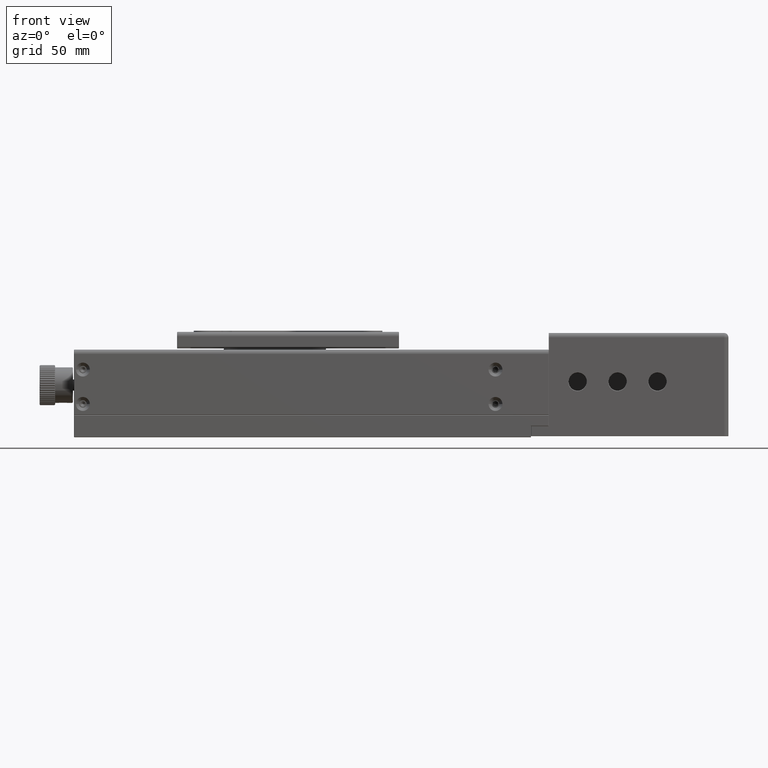
[diagram: clean part render]
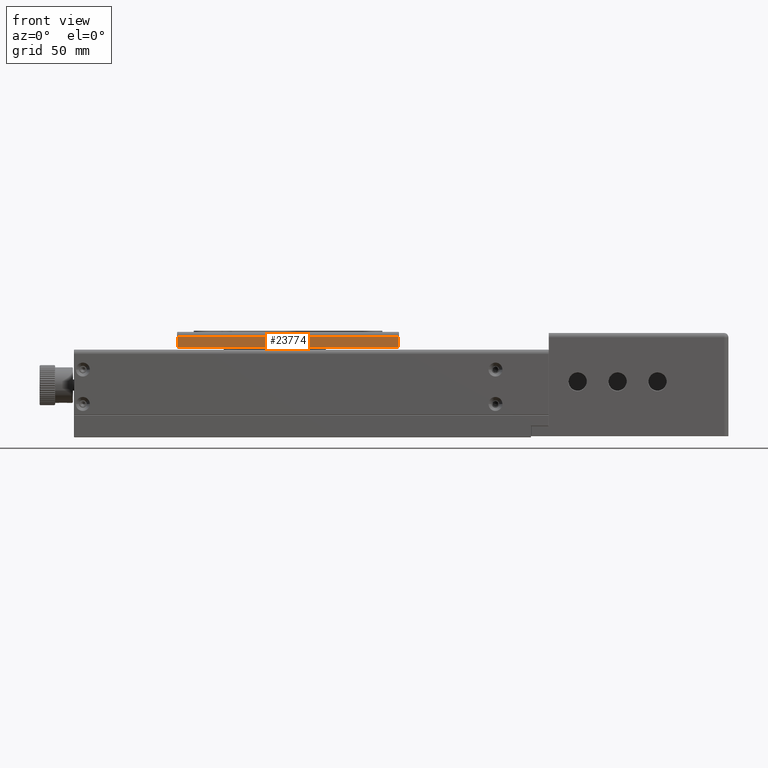
[diagram: same view with one face highlighted and labeled with its STEP entity id]
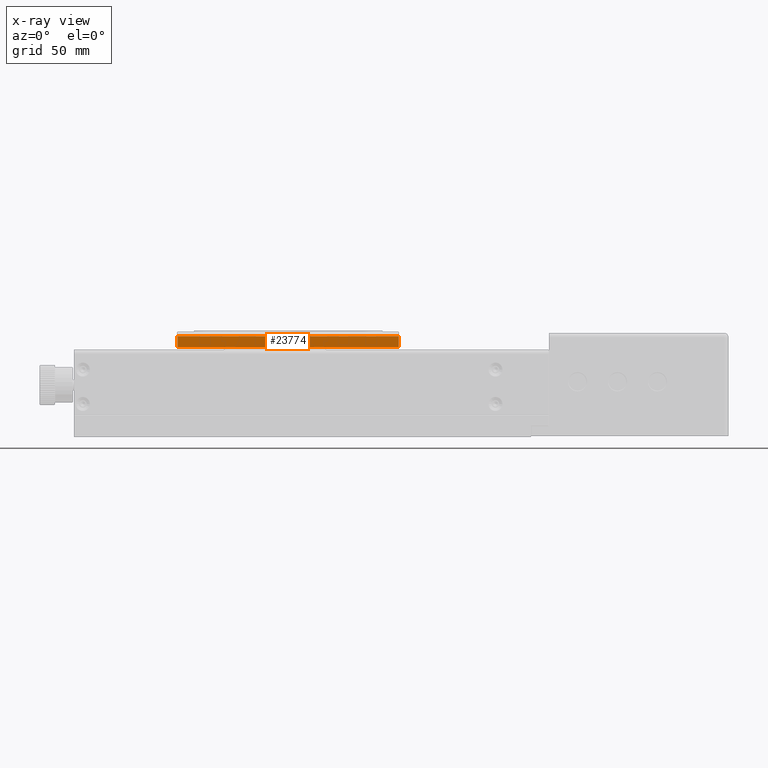
[diagram: x-ray of the same camera — body ghosted, the highlighted face saturated]
A machine part, front view. The second image highlights one B-rep face of the part: STEP entity #23774.
The next image is the same camera in x-ray: the body ghosted, the highlighted face saturated — about 0% of this face is hidden behind the body in this view.
In plain terms, the highlighted planar face has unit normal (-0, 1, 0).
Its self-contained STEP definition (entity closure, byte-faithful):
#1591 = EDGE_CURVE ( 'NONE', #31001, #41307, #19703, .T. ) ;
#2456 = CARTESIAN_POINT ( 'NONE',  ( -122.2687208675883852, -40.00575141257544232, 40.50000000000000000 ) ) ;
#3261 = EDGE_CURVE ( 'NONE', #60153, #25643, #23495, .T. ) ;
#10843 = CARTESIAN_POINT ( 'NONE',  ( -22.46872086758844844, -40.00575141257544232, 35.70000000000000284 ) ) ;
#16006 = LINE ( 'NONE', #74140, #54057 ) ;
#17561 = LINE ( 'NONE', #10843, #47318 ) ;
#18068 = DIRECTION ( 'NONE',  ( -0.000000000000000000, 1.000000000000000000, 0.000000000000000000 ) ) ;
#18593 = DIRECTION ( 'NONE',  ( 0.000000000000000000, 0.000000000000000000, -1.000000000000000000 ) ) ;
#19703 = LINE ( 'NONE', #24588, #42883 ) ;
#23339 = FACE_OUTER_BOUND ( 'NONE', #32803, .T. ) ;
#23482 = VECTOR ( 'NONE', #18593, 1000.000000000000000 ) ;
#23495 = LINE ( 'NONE', #51985, #23482 ) ;
#23774 = ADVANCED_FACE ( 'NONE', ( #23339 ), #45830, .F. ) ;
#24547 = ORIENTED_EDGE ( 'NONE', *, *, #1591, .T. ) ;
#24588 = CARTESIAN_POINT ( 'NONE',  ( -22.66872086758850102, -40.00575141257544232, 43.00000000000000000 ) ) ;
#25643 = VERTEX_POINT ( 'NONE', #52590 ) ;
#29337 = CARTESIAN_POINT ( 'NONE',  ( -122.4687208675883880, -40.00575141257544232, 43.00000000000000000 ) ) ;
#29713 = DIRECTION ( 'NONE',  ( 1.000000000000000000, 0.000000000000000000, 0.000000000000000000 ) ) ;
#30232 = ORIENTED_EDGE ( 'NONE', *, *, #42907, .T. ) ;
#31001 = VERTEX_POINT ( 'NONE', #57786 ) ;
#32803 = EDGE_LOOP ( 'NONE', ( #30232, #50318, #53841, #24547 ) ) ;
#33713 = DIRECTION ( 'NONE',  ( 1.000000000000000000, 0.000000000000000000, 0.000000000000000000 ) ) ;
#34380 = DIRECTION ( 'NONE',  ( -1.000000000000000000, 0.000000000000000000, 0.000000000000000000 ) ) ;
#41307 = VERTEX_POINT ( 'NONE', #71899 ) ;
#42883 = VECTOR ( 'NONE', #65457, 1000.000000000000000 ) ;
#42907 = EDGE_CURVE ( 'NONE', #41307, #60153, #16006, .T. ) ;
#45830 = PLANE ( 'NONE',  #47212 ) ;
#47212 = AXIS2_PLACEMENT_3D ( 'NONE', #29337, #18068, #29713 ) ;
#47318 = VECTOR ( 'NONE', #33713, 1000.000000000000000 ) ;
#50318 = ORIENTED_EDGE ( 'NONE', *, *, #3261, .T. ) ;
#51985 = CARTESIAN_POINT ( 'NONE',  ( -122.2687208675883852, -40.00575141257544232, 43.00000000000000000 ) ) ;
#52590 = CARTESIAN_POINT ( 'NONE',  ( -122.2687208675883852, -40.00575141257544232, 35.70000000000000284 ) ) ;
#53841 = ORIENTED_EDGE ( 'NONE', *, *, #58375, .T. ) ;
#54057 = VECTOR ( 'NONE', #34380, 1000.000000000000000 ) ;
#57786 = CARTESIAN_POINT ( 'NONE',  ( -22.66872086758850102, -40.00575141257544232, 35.70000000000000284 ) ) ;
#58375 = EDGE_CURVE ( 'NONE', #25643, #31001, #17561, .T. ) ;
#60153 = VERTEX_POINT ( 'NONE', #2456 ) ;
#65457 = DIRECTION ( 'NONE',  ( 0.000000000000000000, 0.000000000000000000, 1.000000000000000000 ) ) ;
#71899 = CARTESIAN_POINT ( 'NONE',  ( -22.66872086758850102, -40.00575141257544232, 40.50000000000000000 ) ) ;
#74140 = CARTESIAN_POINT ( 'NONE',  ( -122.4687208675883880, -40.00575141257544232, 40.50000000000000000 ) ) ;